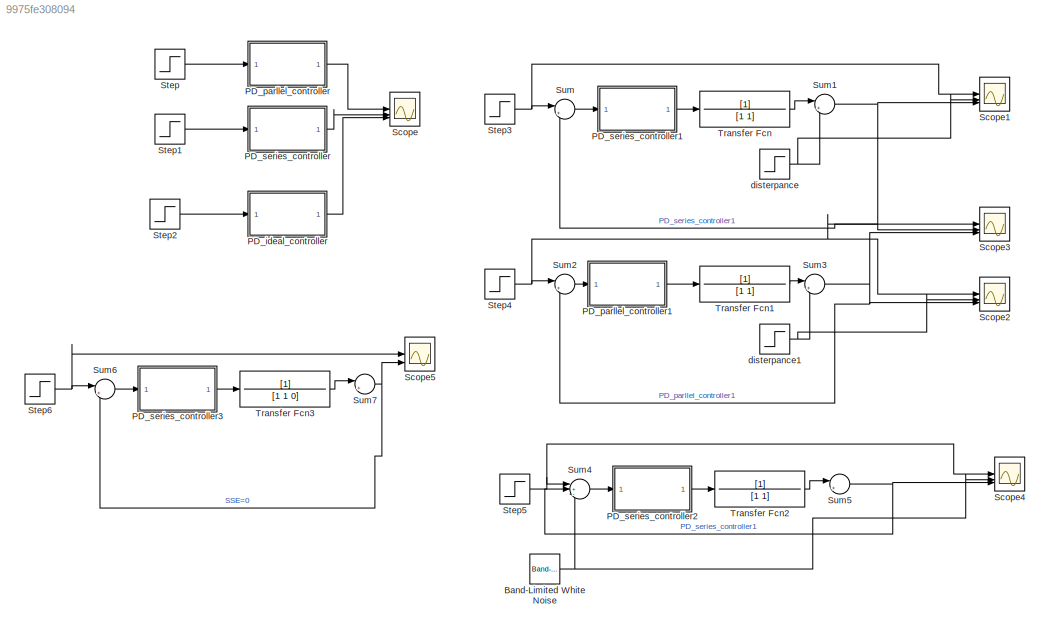
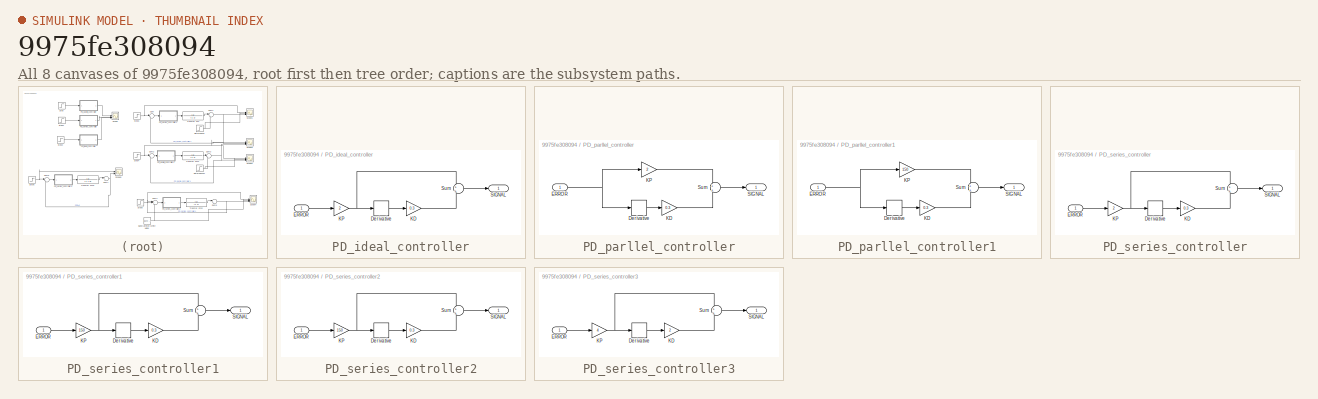
[diagram: thumbnail index - all 8 canvases of the model, root first then tree order]
MODEL slx_9975fe308094
KIND model
CONFIG AbsTol = auto
CONFIG EnableMultiTasking = off
CONFIG FixedStep = auto
CONFIG MaxStep = auto
CONFIG MinStep = auto
CONFIG RelTol = 1e-3
CONFIG SampleTimeConstraint = Unconstrained
CONFIG SolverName = VariableStepAuto
CONFIG StartTime = 0.0
CONFIG StopTime = 10.0
BLOCK [Reference] Band-Limited White Noise  REF=simulink/Sources/Band-Limited
White Noise
  SourceBlock = simulink/Sources/Band-Limited\nWhite Noise
  SourceType = Band-Limited White Noise.
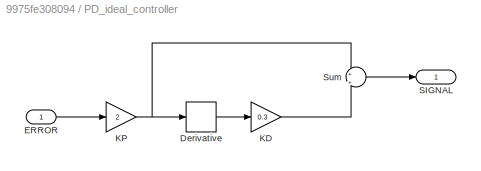
BLOCK [SubSystem] PD_ideal_controller
BLOCK [Derivative] PD_ideal_controller/Derivative
BLOCK [Inport] PD_ideal_controller/ERROR
BLOCK [Gain] PD_ideal_controller/KD
  Gain = 0.3
BLOCK [Gain] PD_ideal_controller/KP
  Gain = 2
BLOCK [Outport] PD_ideal_controller/SIGNAL
BLOCK [Sum] PD_ideal_controller/Sum
  Inputs = +|+
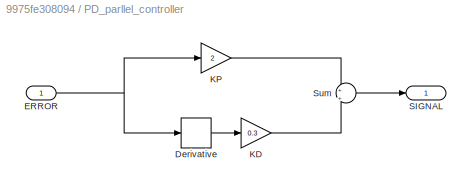
BLOCK [SubSystem] PD_parllel_controller
BLOCK [Derivative] PD_parllel_controller/Derivative
BLOCK [Inport] PD_parllel_controller/ERROR
BLOCK [Gain] PD_parllel_controller/KD
  Gain = 0.3
BLOCK [Gain] PD_parllel_controller/KP
  Gain = 2
BLOCK [Outport] PD_parllel_controller/SIGNAL
BLOCK [Sum] PD_parllel_controller/Sum
  Inputs = +|+
BLOCK [SubSystem] PD_parllel_controller1
BLOCK [Derivative] PD_parllel_controller1/Derivative
BLOCK [Inport] PD_parllel_controller1/ERROR
BLOCK [Gain] PD_parllel_controller1/KD
  Gain = 0.3
BLOCK [Gain] PD_parllel_controller1/KP
  Gain = 150
BLOCK [Outport] PD_parllel_controller1/SIGNAL
BLOCK [Sum] PD_parllel_controller1/Sum
  Inputs = +|+
BLOCK [SubSystem] PD_series_controller
BLOCK [Derivative] PD_series_controller/Derivative
BLOCK [Inport] PD_series_controller/ERROR
BLOCK [Gain] PD_series_controller/KD
  Gain = 0.3
BLOCK [Gain] PD_series_controller/KP
  Gain = 2
BLOCK [Outport] PD_series_controller/SIGNAL
BLOCK [Sum] PD_series_controller/Sum
  Inputs = +|+
BLOCK [SubSystem] PD_series_controller1
BLOCK [Derivative] PD_series_controller1/Derivative
BLOCK [Inport] PD_series_controller1/ERROR
BLOCK [Gain] PD_series_controller1/KD
  Gain = 0.3
BLOCK [Gain] PD_series_controller1/KP
  Gain = 150
BLOCK [Outport] PD_series_controller1/SIGNAL
BLOCK [Sum] PD_series_controller1/Sum
  Inputs = +|+
BLOCK [SubSystem] PD_series_controller2
BLOCK [Derivative] PD_series_controller2/Derivative
BLOCK [Inport] PD_series_controller2/ERROR
BLOCK [Gain] PD_series_controller2/KD
  Gain = 0.3
BLOCK [Gain] PD_series_controller2/KP
  Gain = 150
BLOCK [Outport] PD_series_controller2/SIGNAL
BLOCK [Sum] PD_series_controller2/Sum
  Inputs = +|+
BLOCK [SubSystem] PD_series_controller3
BLOCK [Derivative] PD_series_controller3/Derivative
BLOCK [Inport] PD_series_controller3/ERROR
BLOCK [Gain] PD_series_controller3/KD
  Gain = 2
BLOCK [Gain] PD_series_controller3/KP
  Gain = 4
BLOCK [Outport] PD_series_controller3/SIGNAL
BLOCK [Sum] PD_series_controller3/Sum
  Inputs = +|+
BLOCK [Scope] Scope
  Floating = off
  NumInputPorts = 3
  ScopeSpecificationString = Simulink.scopes.TimeScopeBlockCfg('CurrentConfiguration', extmgr.ConfigurationSet(extmgr.Configuration('Core','General UI',true),extmgr.Configuration('Core','Source UI',true),extmgr.Configuration('Sources','WiredSimulink',true,'DataLoggingVariableName','ScopeData1'),extmgr.Configuration('Visuals','Time Domain',true,'SerializedDisplays',{struct('MinYLimReal','-10555311626649.84766','MaxYLimReal','9...<+1653ch>
BLOCK [Scope] Scope1
  Floating = off
  NumInputPorts = 3
  ScopeSpecificationString = Simulink.scopes.TimeScopeBlockCfg('CurrentConfiguration', extmgr.ConfigurationSet(extmgr.Configuration('Core','General UI',true),extmgr.Configuration('Core','Source UI',true),extmgr.Configuration('Sources','WiredSimulink',true,'DataLoggingVariableName','ScopeData2'),extmgr.Configuration('Visuals','Time Domain',true,'SerializedDisplays',{struct('MinYLimReal','-0.125','MaxYLimReal','1.125','YLabelRe...<+1449ch>
BLOCK [Scope] Scope2
  Floating = off
  NumInputPorts = 3
  ScopeSpecificationString = Simulink.scopes.TimeScopeBlockCfg('CurrentConfiguration', extmgr.ConfigurationSet(extmgr.Configuration('Core','General UI',true),extmgr.Configuration('Core','Source UI',true),extmgr.Configuration('Sources','WiredSimulink',true,'DataLoggingVariableName','ScopeData3'),extmgr.Configuration('Visuals','Time Domain',true,'SerializedDisplays',{struct('MinYLimReal','-0.21649','MaxYLimReal','1.94838','YLab...<+1463ch>
BLOCK [Scope] Scope3
  Floating = off
  NumInputPorts = 3
  ScopeSpecificationString = Simulink.scopes.TimeScopeBlockCfg('CurrentConfiguration', extmgr.ConfigurationSet(extmgr.Configuration('Core','General UI',true),extmgr.Configuration('Core','Source UI',true),extmgr.Configuration('Sources','WiredSimulink',true),extmgr.Configuration('Visuals','Time Domain',true,'SerializedDisplays',{struct('MinYLimReal','-0.21649','MaxYLimReal','1.94838','YLabelReal','','MinYLimMag','0.00000','MaxY...<+1434ch>
BLOCK [Scope] Scope4
  Floating = off
  NumInputPorts = 3
  ScopeSpecificationString = Simulink.scopes.TimeScopeBlockCfg('CurrentConfiguration', extmgr.ConfigurationSet(extmgr.Configuration('Core','General UI',true),extmgr.Configuration('Core','Source UI',true),extmgr.Configuration('Sources','WiredSimulink',true,'DataLoggingVariableName','ScopeData1'),extmgr.Configuration('Visuals','Time Domain',true,'SerializedDisplays',{struct('MinYLimReal','-2.94144','MaxYLimReal','3.76225','YLab...<+1543ch>
BLOCK [Scope] Scope5
  Floating = off
  NumInputPorts = 3
  ScopeSpecificationString = Simulink.scopes.TimeScopeBlockCfg('CurrentConfiguration', extmgr.ConfigurationSet(extmgr.Configuration('Core','General UI',true),extmgr.Configuration('Core','Source UI',true),extmgr.Configuration('Sources','WiredSimulink',true,'DataLoggingVariableName','ScopeData2'),extmgr.Configuration('Visuals','Time Domain',true,'SerializedDisplays',{struct('MinYLimReal','-0.125','MaxYLimReal','1.125','YLabelRe...<+1428ch>
BLOCK [Step] Step
  SampleTime = 0
BLOCK [Step] Step1
  SampleTime = 0
BLOCK [Step] Step2
  SampleTime = 0
BLOCK [Step] Step3
  SampleTime = 0
BLOCK [Step] Step4
  SampleTime = 0
BLOCK [Step] Step5
  SampleTime = 0
BLOCK [Step] Step6
  SampleTime = 0
BLOCK [Sum] Sum
  Inputs = |+-
BLOCK [Sum] Sum1
  Inputs = |+-
BLOCK [Sum] Sum2
  Inputs = |+-
BLOCK [Sum] Sum3
  Inputs = |+-
BLOCK [Sum] Sum4
  Inputs = |+-+
BLOCK [Sum] Sum5
  Inputs = |+-
BLOCK [Sum] Sum6
  Inputs = |+-
BLOCK [Sum] Sum7
  Inputs = |+-
BLOCK [TransferFcn] Transfer Fcn
BLOCK [TransferFcn] Transfer Fcn1
BLOCK [TransferFcn] Transfer Fcn2
BLOCK [TransferFcn] Transfer Fcn3
  Denominator = [1 1 0]
BLOCK [Step] disterpance
  After = 0.4
  SampleTime = 0
  Time = 4
BLOCK [Step] disterpance1
  After = 0.4
  SampleTime = 0
  Time = 4
NET Band-Limited White Noise:1 -> Scope4:2, Sum4:3
LINE PD_ideal_controller/Derivative:1 -> PD_ideal_controller/KD:1
LINE PD_ideal_controller/ERROR:1 -> PD_ideal_controller/KP:1
LINE PD_ideal_controller/KD:1 -> PD_ideal_controller/Sum:2
NET PD_ideal_controller/KP:1 -> PD_ideal_controller/Derivative:1, PD_ideal_controller/Sum:1
LINE PD_ideal_controller/Sum:1 -> PD_ideal_controller/SIGNAL:1
LINE PD_ideal_controller:1 -> Scope:3
LINE PD_parllel_controller/Derivative:1 -> PD_parllel_controller/KD:1
NET PD_parllel_controller/ERROR:1 -> PD_parllel_controller/Derivative:1, PD_parllel_controller/KP:1
LINE PD_parllel_controller/KD:1 -> PD_parllel_controller/Sum:2
LINE PD_parllel_controller/KP:1 -> PD_parllel_controller/Sum:1
LINE PD_parllel_controller/Sum:1 -> PD_parllel_controller/SIGNAL:1
LINE PD_parllel_controller1/Derivative:1 -> PD_parllel_controller1/KD:1
NET PD_parllel_controller1/ERROR:1 -> PD_parllel_controller1/Derivative:1, PD_parllel_controller1/KP:1
LINE PD_parllel_controller1/KD:1 -> PD_parllel_controller1/Sum:2
LINE PD_parllel_controller1/KP:1 -> PD_parllel_controller1/Sum:1
LINE PD_parllel_controller1/Sum:1 -> PD_parllel_controller1/SIGNAL:1
LINE PD_parllel_controller1:1 -> Transfer Fcn1:1
LINE PD_parllel_controller:1 -> Scope:1
LINE PD_series_controller/Derivative:1 -> PD_series_controller/KD:1
LINE PD_series_controller/ERROR:1 -> PD_series_controller/KP:1
LINE PD_series_controller/KD:1 -> PD_series_controller/Sum:2
NET PD_series_controller/KP:1 -> PD_series_controller/Derivative:1, PD_series_controller/Sum:1
LINE PD_series_controller/Sum:1 -> PD_series_controller/SIGNAL:1
LINE PD_series_controller1/Derivative:1 -> PD_series_controller1/KD:1
LINE PD_series_controller1/ERROR:1 -> PD_series_controller1/KP:1
LINE PD_series_controller1/KD:1 -> PD_series_controller1/Sum:2
NET PD_series_controller1/KP:1 -> PD_series_controller1/Derivative:1, PD_series_controller1/Sum:1
LINE PD_series_controller1/Sum:1 -> PD_series_controller1/SIGNAL:1
LINE PD_series_controller1:1 -> Transfer Fcn:1
LINE PD_series_controller2/Derivative:1 -> PD_series_controller2/KD:1
LINE PD_series_controller2/ERROR:1 -> PD_series_controller2/KP:1
LINE PD_series_controller2/KD:1 -> PD_series_controller2/Sum:2
NET PD_series_controller2/KP:1 -> PD_series_controller2/Derivative:1, PD_series_controller2/Sum:1
LINE PD_series_controller2/Sum:1 -> PD_series_controller2/SIGNAL:1
LINE PD_series_controller2:1 -> Transfer Fcn2:1
LINE PD_series_controller3/Derivative:1 -> PD_series_controller3/KD:1
LINE PD_series_controller3/ERROR:1 -> PD_series_controller3/KP:1
LINE PD_series_controller3/KD:1 -> PD_series_controller3/Sum:2
NET PD_series_controller3/KP:1 -> PD_series_controller3/Derivative:1, PD_series_controller3/Sum:1
LINE PD_series_controller3/Sum:1 -> PD_series_controller3/SIGNAL:1
LINE PD_series_controller3:1 -> Transfer Fcn3:1
LINE PD_series_controller:1 -> Scope:2
LINE Step1:1 -> PD_series_controller:1
LINE Step2:1 -> PD_ideal_controller:1
NET Step3:1 -> Scope1:1, Sum:1
NET Step4:1 -> Scope2:1, Scope3:1, Sum2:1
NET Step5:1 -> Scope4:1, Sum4:1
NET Step6:1 -> Scope5:1, Sum6:1
LINE Step:1 -> PD_parllel_controller:1
NET Sum1:1 -> Scope1:3, Scope3:2, Sum:2
LINE Sum2:1 -> PD_parllel_controller1:1
NET Sum3:1 -> Scope2:3, Scope3:3, Sum2:2
LINE Sum4:1 -> PD_series_controller2:1
NET Sum5:1 -> Scope4:3, Sum4:2
LINE Sum6:1 -> PD_series_controller3:1
NET Sum7:1 -> Scope5:3, Sum6:2
LINE Sum:1 -> PD_series_controller1:1
LINE Transfer Fcn1:1 -> Sum3:1
LINE Transfer Fcn2:1 -> Sum5:1
LINE Transfer Fcn3:1 -> Sum7:1
LINE Transfer Fcn:1 -> Sum1:1
NET disterpance1:1 -> Scope2:2, Sum3:2
NET disterpance:1 -> Scope1:2, Sum1:2
note: NET lines group one-source signal fan-out (src -> all destinations, sorted); 1:1 wires keep LINE
